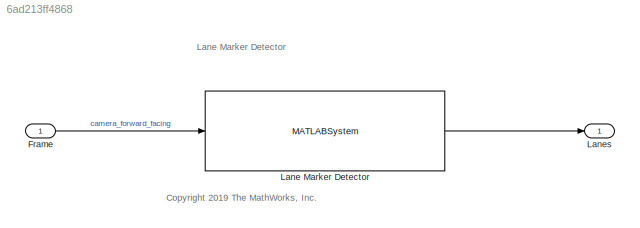
MODEL slx_6ad213ff4868
KIND model
CONFIG AbsTol = auto
CONFIG EnableMultiTasking = off
CONFIG FixedStep = auto
CONFIG MaxStep = auto
CONFIG MinStep = auto
CONFIG RelTol = 1e-3
CONFIG SampleTimeConstraint = Unconstrained
CONFIG Solver = FixedStepAuto
CONFIG SolverName = FixedStepAuto
CONFIG StartTime = 0.0
CONFIG StopTime = scenario.StopTime
BLOCK [Inport] Frame
  OutDataTypeStr = uint8
  PortDimensions = [768 1024 3]
  SampleTime = [0.10000000000000001,0]
  SamplingMode = Sample based
  SignalType = real
BLOCK [MATLABSystem] Lane Marker Detector
  Camera = camera
  EnableDisplays = on
  EnableLaneTracker = on
  MaskDisplay = disp('HelperLaneMarkerDetector');\nport_label('input',1,'frame');\nport_label('output',1,'lanes');
  MaskType = HelperLaneMarkerDetector
  Ports = [1, 1]
  SimulateUsing = Interpreted execution
  System = HelperLaneMarkerDetector
BLOCK [Outport] Lanes
  BusOutputAsStruct = on
  OutDataTypeStr = Bus: LaneSensor
  PortDimensions = [1 1]
  SampleTime = [0.10000000000000001,0]
ANNOTATION (root): <copyright redacted>
ANNOTATION (root): Lane Marker Detector
LINE Frame:1 -> Lane Marker Detector:1
LINE Lane Marker Detector:1 -> Lanes:1
